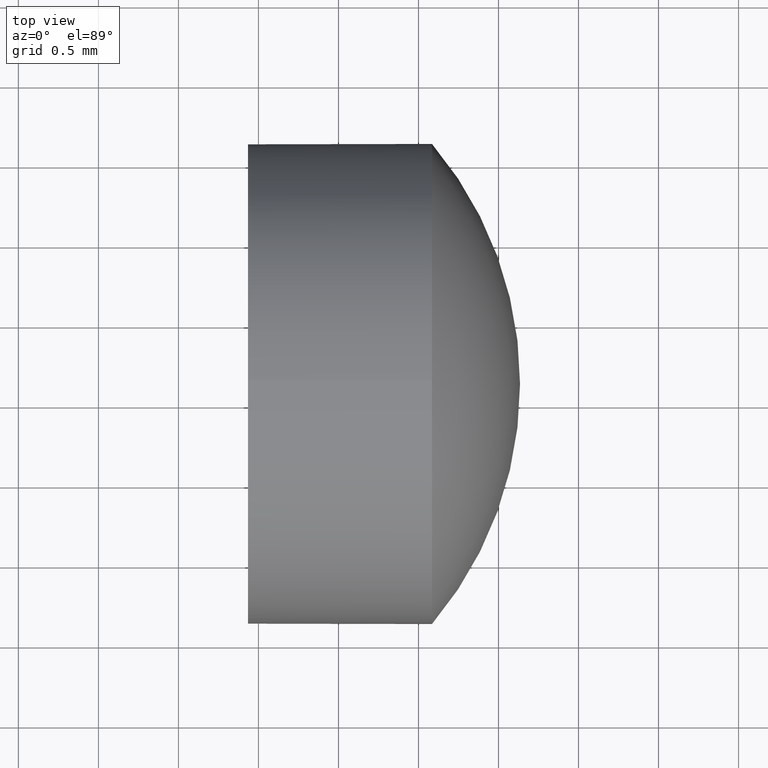
[diagram: clean part render]
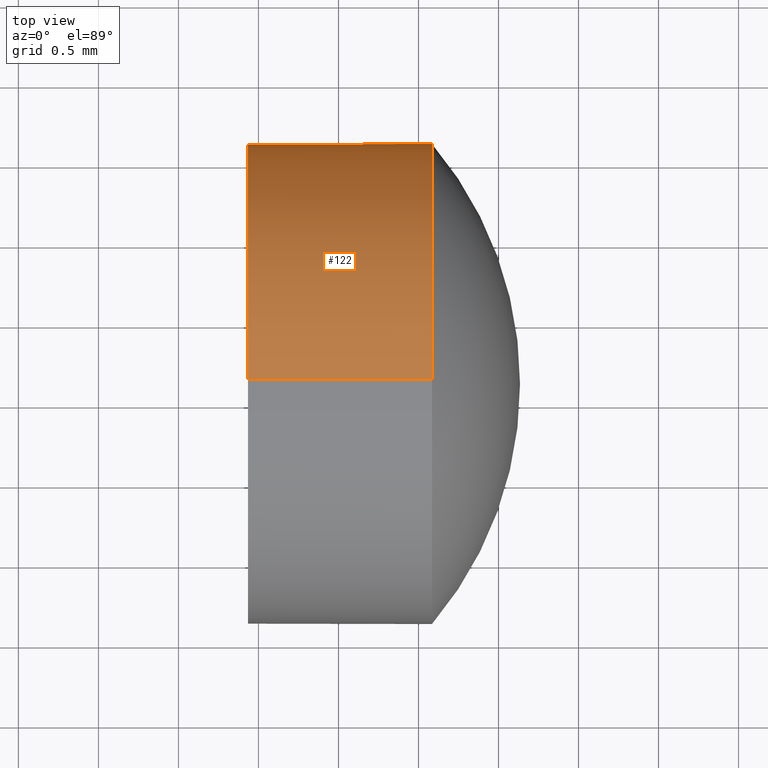
[diagram: same view with one face highlighted and labeled with its STEP entity id]
A machine part, top view. The second image highlights one B-rep face of the part: STEP entity #122.
In plain terms, the highlighted cylindrical surface (partial cylindrical patch) has radius 1.5 mm, axis along (-1, -0, -0).
Its self-contained STEP definition (entity closure, byte-faithful):
#2 = ORIENTED_EDGE ( 'NONE', *, *, #13, .T. ) ;
#5 = VERTEX_POINT ( 'NONE', #108 ) ;
#11 = DIRECTION ( 'NONE',  ( -1.000000000000000000, -0.0000000000000000000, -0.0000000000000000000 ) ) ;
#13 = EDGE_CURVE ( 'NONE', #164, #138, #165, .T. ) ;
#22 = AXIS2_PLACEMENT_3D ( 'NONE', #60, #183, #102 ) ;
#24 = CARTESIAN_POINT ( 'NONE',  ( 533.0845595379046200, 125.1230185233483600, 1.499984999999981500 ) ) ;
#33 = FACE_OUTER_BOUND ( 'NONE', #65, .T. ) ;
#34 = ORIENTED_EDGE ( 'NONE', *, *, #58, .F. ) ;
#35 = VECTOR ( 'NONE', #175, 1000.000000000000000 ) ;
#36 = AXIS2_PLACEMENT_3D ( 'NONE', #61, #139, #104 ) ;
#38 = CARTESIAN_POINT ( 'NONE',  ( 533.0845595379046200, 125.1230185233483600, 0.0000000000000000000 ) ) ;
#46 = EDGE_CURVE ( 'NONE', #5, #173, #150, .T. ) ;
#57 = CYLINDRICAL_SURFACE ( 'NONE', #106, 1.499984999999981500 ) ;
#58 = EDGE_CURVE ( 'NONE', #86, #5, #147, .T. ) ;
#60 = CARTESIAN_POINT ( 'NONE',  ( 533.0845595379046200, 125.1230185233483600, 0.0000000000000000000 ) ) ;
#61 = CARTESIAN_POINT ( 'NONE',  ( 531.9345710379045600, 125.1230185233483600, 0.0000000000000000000 ) ) ;
#62 = CIRCLE ( 'NONE', #151, 1.499984999999981500 ) ;
#64 = CARTESIAN_POINT ( 'NONE',  ( 531.9345710379045600, 125.1230185233483600, -1.499984999999981500 ) ) ;
#65 = EDGE_LOOP ( 'NONE', ( #2, #92, #98, #34, #89 ) ) ;
#77 = CARTESIAN_POINT ( 'NONE',  ( 531.7030729802447700, 125.1230185233483600, 1.499984999999981500 ) ) ;
#81 = VECTOR ( 'NONE', #11, 1000.000000000000000 ) ;
#82 = EDGE_CURVE ( 'NONE', #86, #164, #62, .T. ) ;
#86 = VERTEX_POINT ( 'NONE', #24 ) ;
#89 = ORIENTED_EDGE ( 'NONE', *, *, #82, .T. ) ;
#91 = DIRECTION ( 'NONE',  ( 0.0000000000000000000, 0.0000000000000000000, 1.000000000000000000 ) ) ;
#92 = ORIENTED_EDGE ( 'NONE', *, *, #99, .T. ) ;
#98 = ORIENTED_EDGE ( 'NONE', *, *, #46, .F. ) ;
#99 = EDGE_CURVE ( 'NONE', #138, #173, #132, .T. ) ;
#102 = DIRECTION ( 'NONE',  ( 0.0000000000000000000, 0.0000000000000000000, 1.000000000000000000 ) ) ;
#104 = DIRECTION ( 'NONE',  ( 0.0000000000000000000, 0.0000000000000000000, 1.000000000000000000 ) ) ;
#106 = AXIS2_PLACEMENT_3D ( 'NONE', #143, #156, #159 ) ;
#108 = CARTESIAN_POINT ( 'NONE',  ( 531.9345710379045600, 125.1230185233483600, 1.499984999999981500 ) ) ;
#113 = CARTESIAN_POINT ( 'NONE',  ( 533.0845595379046200, 126.6230035233483200, 0.0000000000000000000 ) ) ;
#122 = ADVANCED_FACE ( 'NONE', ( #33 ), #57, .T. ) ;
#123 = CARTESIAN_POINT ( 'NONE',  ( 531.7030729802447700, 125.1230185233483600, -1.499984999999981500 ) ) ;
#132 = LINE ( 'NONE', #123, #35 ) ;
#138 = VERTEX_POINT ( 'NONE', #186 ) ;
#139 = DIRECTION ( 'NONE',  ( -1.000000000000000000, -0.0000000000000000000, -0.0000000000000000000 ) ) ;
#143 = CARTESIAN_POINT ( 'NONE',  ( 531.7030729802447700, 125.1230185233483600, 0.0000000000000000000 ) ) ;
#147 = LINE ( 'NONE', #77, #81 ) ;
#150 = CIRCLE ( 'NONE', #36, 1.499984999999981500 ) ;
#151 = AXIS2_PLACEMENT_3D ( 'NONE', #38, #181, #91 ) ;
#156 = DIRECTION ( 'NONE',  ( -1.000000000000000000, -0.0000000000000000000, -0.0000000000000000000 ) ) ;
#159 = DIRECTION ( 'NONE',  ( 0.0000000000000000000, 0.0000000000000000000, 1.000000000000000000 ) ) ;
#164 = VERTEX_POINT ( 'NONE', #113 ) ;
#165 = CIRCLE ( 'NONE', #22, 1.499984999999981500 ) ;
#173 = VERTEX_POINT ( 'NONE', #64 ) ;
#175 = DIRECTION ( 'NONE',  ( -1.000000000000000000, -0.0000000000000000000, -0.0000000000000000000 ) ) ;
#181 = DIRECTION ( 'NONE',  ( -1.000000000000000000, -0.0000000000000000000, -0.0000000000000000000 ) ) ;
#183 = DIRECTION ( 'NONE',  ( -1.000000000000000000, -0.0000000000000000000, -0.0000000000000000000 ) ) ;
#186 = CARTESIAN_POINT ( 'NONE',  ( 533.0845595379046200, 125.1230185233483600, -1.499984999999981500 ) ) ;